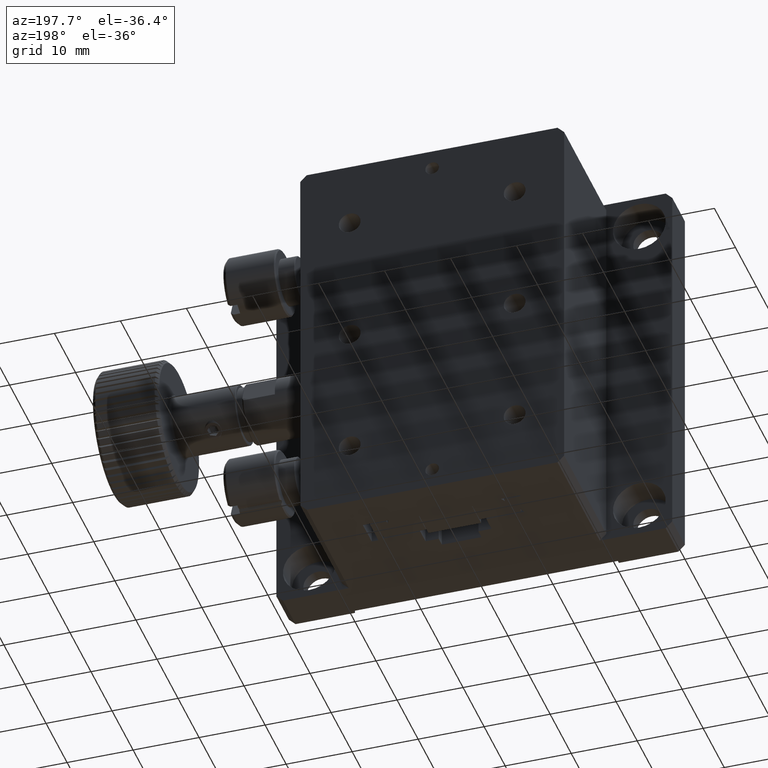
[diagram: clean part render]
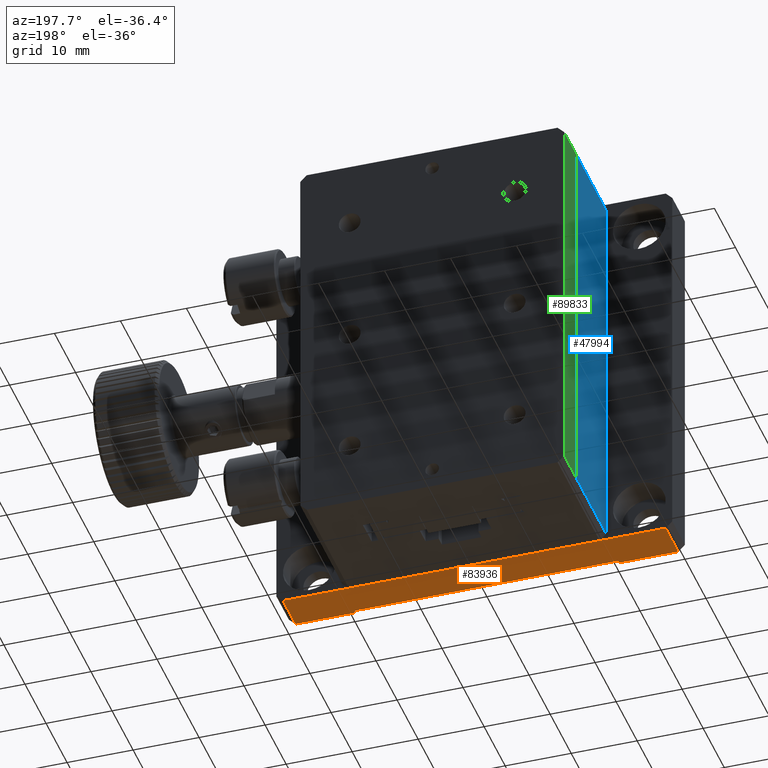
[diagram: same view with three faces highlighted in distinct colors, each labeled with its STEP entity id]
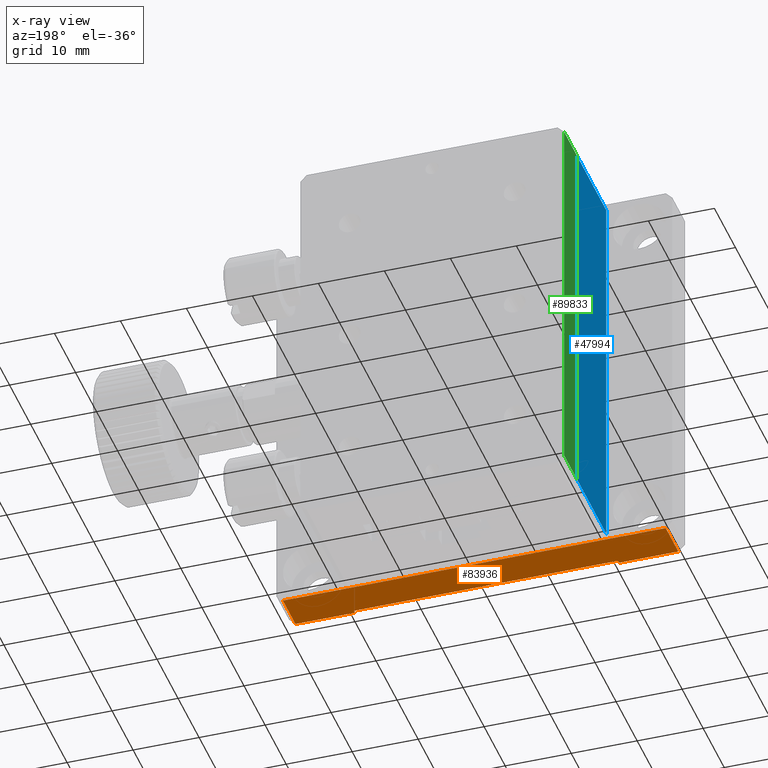
[diagram: x-ray of the same camera — body ghosted, the three highlighted faces saturated]
A machine part, auxiliary view with three faces highlighted in distinct colors.
The next image is the same camera in x-ray (body ghosted, the three faces saturated) — at least one of them is partly hidden behind the body in this view.
Their STEP definitions:

[orange] entity #83936 — the highlighted planar face has unit normal (0, 0, 1).
#3258 = PLANE ( 'NONE',  #32402 ) ;
#5296 = DIRECTION ( 'NONE',  ( -1.000000000000000000, -0.000000000000000000, 0.000000000000000000 ) ) ;
#7165 = DIRECTION ( 'NONE',  ( 1.000000000000000000, 0.000000000000000000, -0.000000000000000000 ) ) ;
#8165 = EDGE_CURVE ( 'NONE', #18682, #32186, #19999, .T. ) ;
#13341 = VECTOR ( 'NONE', #91260, 1000.000000000000000 ) ;
#13520 = ORIENTED_EDGE ( 'NONE', *, *, #100480, .F. ) ;
#14609 = VECTOR ( 'NONE', #7165, 1000.000000000000000 ) ;
#16209 = CARTESIAN_POINT ( 'NONE',  ( 1.000000000000008216, -2.602085213965210642E-15, -5.421010862427522170E-17 ) ) ;
#16944 = VERTEX_POINT ( 'NONE', #20298 ) ;
#18216 = DIRECTION ( 'NONE',  ( -0.000000000000000000, -1.000000000000000000, -0.000000000000000000 ) ) ;
#18682 = VERTEX_POINT ( 'NONE', #99530 ) ;
#19825 = CARTESIAN_POINT ( 'NONE',  ( 10.00000000000000533, 0.5000000000000001110, 0.000000000000000000 ) ) ;
#19999 = LINE ( 'NONE', #78143, #56907 ) ;
#20298 = CARTESIAN_POINT ( 'NONE',  ( 10.00000000000000533, 0.000000000000000000, 0.000000000000000000 ) ) ;
#22775 = EDGE_CURVE ( 'NONE', #102651, #80885, #92290, .T. ) ;
#24411 = VECTOR ( 'NONE', #105551, 1000.000000000000000 ) ;
#25659 = VECTOR ( 'NONE', #83592, 1000.000000000000000 ) ;
#30889 = EDGE_CURVE ( 'NONE', #81825, #80885, #98860, .T. ) ;
#32186 = VERTEX_POINT ( 'NONE', #80858 ) ;
#32402 = AXIS2_PLACEMENT_3D ( 'NONE', #77186, #68489, #62502 ) ;
#33123 = CARTESIAN_POINT ( 'NONE',  ( 50.00000000000000711, 0.5000000000000000000, 0.000000000000000000 ) ) ;
#33931 = EDGE_CURVE ( 'NONE', #32186, #61647, #85576, .T. ) ;
#34206 = ORIENTED_EDGE ( 'NONE', *, *, #8165, .F. ) ;
#34875 = ORIENTED_EDGE ( 'NONE', *, *, #30889, .T. ) ;
#37676 = CARTESIAN_POINT ( 'NONE',  ( 0.000000000000000000, 0.000000000000000000, 0.000000000000000000 ) ) ;
#39183 = VECTOR ( 'NONE', #18216, 1000.000000000000000 ) ;
#40117 = EDGE_LOOP ( 'NONE', ( #56543, #59771, #75772, #34206, #62430, #13520, #34875, #77269 ) ) ;
#41614 = CARTESIAN_POINT ( 'NONE',  ( 1.000000000000007994, 6.000000000000000000, 0.000000000000000000 ) ) ;
#46243 = EDGE_CURVE ( 'NONE', #61647, #16944, #78971, .T. ) ;
#50300 = DIRECTION ( 'NONE',  ( 0.000000000000000000, -1.000000000000000000, -0.000000000000000000 ) ) ;
#53457 = EDGE_CURVE ( 'NONE', #102393, #18682, #95371, .T. ) ;
#56543 = ORIENTED_EDGE ( 'NONE', *, *, #79159, .T. ) ;
#56907 = VECTOR ( 'NONE', #5296, 1000.000000000000000 ) ;
#58222 = CARTESIAN_POINT ( 'NONE',  ( 0.000000000000000000, 0.000000000000000000, 0.000000000000000000 ) ) ;
#59771 = ORIENTED_EDGE ( 'NONE', *, *, #46243, .F. ) ;
#61647 = VERTEX_POINT ( 'NONE', #16209 ) ;
#62430 = ORIENTED_EDGE ( 'NONE', *, *, #53457, .F. ) ;
#62502 = DIRECTION ( 'NONE',  ( 1.000000000000000000, 0.000000000000000000, -0.000000000000000000 ) ) ;
#66448 = CARTESIAN_POINT ( 'NONE',  ( 50.00000000000000711, 0.5000000000000001110, 0.000000000000000000 ) ) ;
#67533 = CARTESIAN_POINT ( 'NONE',  ( 50.00000000000000000, 0.000000000000000000, 0.000000000000000000 ) ) ;
#68489 = DIRECTION ( 'NONE',  ( 0.000000000000000000, 0.000000000000000000, 1.000000000000000000 ) ) ;
#75588 = LINE ( 'NONE', #58222, #14609 ) ;
#75772 = ORIENTED_EDGE ( 'NONE', *, *, #33931, .F. ) ;
#77186 = CARTESIAN_POINT ( 'NONE',  ( 0.000000000000000000, 6.000000000000000000, 0.000000000000000000 ) ) ;
#77269 = ORIENTED_EDGE ( 'NONE', *, *, #22775, .F. ) ;
#78143 = CARTESIAN_POINT ( 'NONE',  ( 0.000000000000000000, 6.000000000000000000, 0.000000000000000000 ) ) ;
#78971 = LINE ( 'NONE', #37676, #24411 ) ;
#79159 = EDGE_CURVE ( 'NONE', #102651, #16944, #102410, .T. ) ;
#79611 = DIRECTION ( 'NONE',  ( -0.000000000000000000, 1.000000000000000000, 0.000000000000000000 ) ) ;
#80858 = CARTESIAN_POINT ( 'NONE',  ( 1.000000000000007994, 6.000000000000000000, -1.355252715606880543E-16 ) ) ;
#80885 = VERTEX_POINT ( 'NONE', #66448 ) ;
#81825 = VERTEX_POINT ( 'NONE', #67533 ) ;
#83592 = DIRECTION ( 'NONE',  ( 1.000000000000000000, 0.000000000000000000, -0.000000000000000000 ) ) ;
#83936 = ADVANCED_FACE ( 'NONE', ( #102709 ), #3258, .F. ) ;
#85045 = CARTESIAN_POINT ( 'NONE',  ( 10.00000000000000711, 0.5000000000000000000, 0.000000000000000000 ) ) ;
#85576 = LINE ( 'NONE', #41614, #95704 ) ;
#91260 = DIRECTION ( 'NONE',  ( 0.000000000000000000, 1.000000000000000000, 0.000000000000000000 ) ) ;
#92290 = LINE ( 'NONE', #99876, #25659 ) ;
#94262 = CARTESIAN_POINT ( 'NONE',  ( 59.00000000000001421, 0.000000000000000000, 8.131516293641283255E-16 ) ) ;
#95371 = LINE ( 'NONE', #96963, #96946 ) ;
#95704 = VECTOR ( 'NONE', #50300, 1000.000000000000000 ) ;
#96946 = VECTOR ( 'NONE', #79611, 1000.000000000000000 ) ;
#96963 = CARTESIAN_POINT ( 'NONE',  ( 59.00000000000001421, 6.000000000000000000, 0.000000000000000000 ) ) ;
#98860 = LINE ( 'NONE', #33123, #13341 ) ;
#99530 = CARTESIAN_POINT ( 'NONE',  ( 59.00000000000001421, 6.000000000000000000, -1.328147661294742932E-15 ) ) ;
#99876 = CARTESIAN_POINT ( 'NONE',  ( 0.000000000000000000, 0.5000000000000004441, 0.000000000000000000 ) ) ;
#100480 = EDGE_CURVE ( 'NONE', #81825, #102393, #75588, .T. ) ;
#102393 = VERTEX_POINT ( 'NONE', #94262 ) ;
#102410 = LINE ( 'NONE', #85045, #39183 ) ;
#102651 = VERTEX_POINT ( 'NONE', #19825 ) ;
#102709 = FACE_OUTER_BOUND ( 'NONE', #40117, .T. ) ;
#105551 = DIRECTION ( 'NONE',  ( 1.000000000000000000, 0.000000000000000000, -0.000000000000000000 ) ) ;

[blue] entity #47994 — the highlighted planar face has unit normal (1, -0, -0).
#5028 = CARTESIAN_POINT ( 'NONE',  ( 10.00000000000404299, 6.000000000000006217, -8.326672684688674053E-14 ) ) ;
#5752 = EDGE_CURVE ( 'NONE', #76339, #68531, #95104, .T. ) ;
#9170 = FACE_OUTER_BOUND ( 'NONE', #74985, .T. ) ;
#12362 = EDGE_CURVE ( 'NONE', #57079, #68531, #29496, .T. ) ;
#23848 = VECTOR ( 'NONE', #71175, 1000.000000000000000 ) ;
#26437 = DIRECTION ( 'NONE',  ( 2.478176394252582620E-16, 1.000000000000000000, -1.730501326978891334E-30 ) ) ;
#29224 = CARTESIAN_POINT ( 'NONE',  ( 10.00000000000434319, 6.000000000000001776, 58.99999999999980815 ) ) ;
#29496 = LINE ( 'NONE', #5028, #50148 ) ;
#30887 = VERTEX_POINT ( 'NONE', #98318 ) ;
#34174 = CARTESIAN_POINT ( 'NONE',  ( 10.00000000000403944, 19.99999999999999645, -8.326672684688674053E-14 ) ) ;
#47994 = ADVANCED_FACE ( 'NONE', ( #9170 ), #73321, .F. ) ;
#48348 = DIRECTION ( 'NONE',  ( -6.982962677686266711E-15, 0.000000000000000000, -1.000000000000000000 ) ) ;
#50148 = VECTOR ( 'NONE', #77865, 1000.000000000000000 ) ;
#51970 = CARTESIAN_POINT ( 'NONE',  ( 10.00000000000404121, 6.000000000000005329, 0.9999999999999243938 ) ) ;
#54820 = ORIENTED_EDGE ( 'NONE', *, *, #71231, .F. ) ;
#57079 = VERTEX_POINT ( 'NONE', #51970 ) ;
#58504 = LINE ( 'NONE', #99782, #90923 ) ;
#64913 = CARTESIAN_POINT ( 'NONE',  ( 10.00000000000403944, 19.99999999999999645, -8.326672684688674053E-14 ) ) ;
#67313 = DIRECTION ( 'NONE',  ( 1.000000000000000000, -2.478176394252582620E-16, -6.982962677686266711E-15 ) ) ;
#68531 = VERTEX_POINT ( 'NONE', #29224 ) ;
#69534 = AXIS2_PLACEMENT_3D ( 'NONE', #34174, #67313, #48348 ) ;
#71175 = DIRECTION ( 'NONE',  ( -2.478176394252582620E-16, -1.000000000000000000, 1.730501326978891334E-30 ) ) ;
#71231 = EDGE_CURVE ( 'NONE', #30887, #76339, #80694, .T. ) ;
#73321 = PLANE ( 'NONE',  #69534 ) ;
#74985 = EDGE_LOOP ( 'NONE', ( #104135, #54820, #102340, #102142 ) ) ;
#76339 = VERTEX_POINT ( 'NONE', #100388 ) ;
#77865 = DIRECTION ( 'NONE',  ( 2.372237188912027766E-46, 1.287060361940809514E-30, 1.000000000000000000 ) ) ;
#80694 = LINE ( 'NONE', #64913, #104315 ) ;
#90449 = DIRECTION ( 'NONE',  ( 6.982962677686266711E-15, -0.000000000000000000, 1.000000000000000000 ) ) ;
#90759 = EDGE_CURVE ( 'NONE', #57079, #30887, #58504, .T. ) ;
#90923 = VECTOR ( 'NONE', #26437, 1000.000000000000000 ) ;
#95104 = LINE ( 'NONE', #96709, #23848 ) ;
#96709 = CARTESIAN_POINT ( 'NONE',  ( 10.00000000000444977, 19.99999999999999645, 58.99999999999991473 ) ) ;
#98318 = CARTESIAN_POINT ( 'NONE',  ( 10.00000000000414424, 20.00000000000000000, 0.9999999999998239186 ) ) ;
#99782 = CARTESIAN_POINT ( 'NONE',  ( 10.00000000000404476, 19.99999999999999645, 0.9999999999999245048 ) ) ;
#100388 = CARTESIAN_POINT ( 'NONE',  ( 10.00000000000444977, 19.99999999999999645, 58.99999999999991473 ) ) ;
#102142 = ORIENTED_EDGE ( 'NONE', *, *, #12362, .T. ) ;
#102340 = ORIENTED_EDGE ( 'NONE', *, *, #90759, .F. ) ;
#104135 = ORIENTED_EDGE ( 'NONE', *, *, #5752, .F. ) ;
#104315 = VECTOR ( 'NONE', #90449, 1000.000000000000000 ) ;

[green] entity #89833 — the highlighted planar face has unit normal (1, -0, 0).
#2691 = DIRECTION ( 'NONE',  ( -0.000000000000000000, -1.000000000000000000, -0.000000000000000000 ) ) ;
#3775 = ORIENTED_EDGE ( 'NONE', *, *, #37450, .F. ) ;
#5959 = VECTOR ( 'NONE', #24010, 1000.000000000000000 ) ;
#6918 = DIRECTION ( 'NONE',  ( 0.000000000000000000, 0.000000000000000000, -1.000000000000000000 ) ) ;
#8310 = DIRECTION ( 'NONE',  ( 0.000000000000000000, 0.000000000000000000, -1.000000000000000000 ) ) ;
#12517 = CARTESIAN_POINT ( 'NONE',  ( 10.00000000000281908, 20.00000000000313349, 1.000000000000001998 ) ) ;
#18492 = VECTOR ( 'NONE', #2691, 1000.000000000000000 ) ;
#19448 = LINE ( 'NONE', #59665, #72730 ) ;
#24010 = DIRECTION ( 'NONE',  ( 0.000000000000000000, -0.000000000000000000, -1.000000000000000000 ) ) ;
#25803 = VERTEX_POINT ( 'NONE', #104060 ) ;
#32693 = LINE ( 'NONE', #74516, #5959 ) ;
#33030 = ORIENTED_EDGE ( 'NONE', *, *, #80697, .F. ) ;
#33181 = VERTEX_POINT ( 'NONE', #103150 ) ;
#33715 = LINE ( 'NONE', #43503, #18492 ) ;
#35749 = VECTOR ( 'NONE', #8310, 1000.000000000000000 ) ;
#37450 = EDGE_CURVE ( 'NONE', #84226, #33181, #19448, .T. ) ;
#43503 = CARTESIAN_POINT ( 'NONE',  ( 10.00000000000281908, 20.00000000000313349, 58.99999999999997158 ) ) ;
#44110 = AXIS2_PLACEMENT_3D ( 'NONE', #105828, #88999, #6918 ) ;
#52581 = DIRECTION ( 'NONE',  ( 0.000000000000000000, 1.000000000000000000, 0.000000000000000000 ) ) ;
#54287 = VERTEX_POINT ( 'NONE', #93634 ) ;
#56712 = LINE ( 'NONE', #100123, #35749 ) ;
#59665 = CARTESIAN_POINT ( 'NONE',  ( 10.00000000000281908, 20.00000000000313349, 1.000000000000000888 ) ) ;
#60187 = EDGE_CURVE ( 'NONE', #54287, #25803, #33715, .T. ) ;
#69903 = ORIENTED_EDGE ( 'NONE', *, *, #60187, .F. ) ;
#71594 = FACE_OUTER_BOUND ( 'NONE', #89959, .T. ) ;
#72668 = PLANE ( 'NONE',  #44110 ) ;
#72730 = VECTOR ( 'NONE', #52581, 1000.000000000000000 ) ;
#74516 = CARTESIAN_POINT ( 'NONE',  ( 10.00000000000281908, 26.00000000000313349, 59.99999999999998579 ) ) ;
#80697 = EDGE_CURVE ( 'NONE', #25803, #84226, #56712, .T. ) ;
#84226 = VERTEX_POINT ( 'NONE', #12517 ) ;
#88544 = EDGE_CURVE ( 'NONE', #54287, #33181, #32693, .T. ) ;
#88999 = DIRECTION ( 'NONE',  ( 1.000000000000000000, -0.000000000000000000, 0.000000000000000000 ) ) ;
#89833 = ADVANCED_FACE ( 'NONE', ( #71594 ), #72668, .F. ) ;
#89959 = EDGE_LOOP ( 'NONE', ( #3775, #33030, #69903, #93453 ) ) ;
#93453 = ORIENTED_EDGE ( 'NONE', *, *, #88544, .T. ) ;
#93634 = CARTESIAN_POINT ( 'NONE',  ( 10.00000000000282263, 26.00000000000313349, 58.99999999999997158 ) ) ;
#100123 = CARTESIAN_POINT ( 'NONE',  ( 10.00000000000281908, 20.00000000000313349, 59.99999999999998579 ) ) ;
#103150 = CARTESIAN_POINT ( 'NONE',  ( 10.00000000000282085, 26.00000000000313705, 0.9999999999999974465 ) ) ;
#104060 = CARTESIAN_POINT ( 'NONE',  ( 10.00000000000282263, 20.00000000000312994, 58.99999999999997158 ) ) ;
#105828 = CARTESIAN_POINT ( 'NONE',  ( 10.00000000000281908, 20.00000000000313349, 59.99999999999998579 ) ) ;